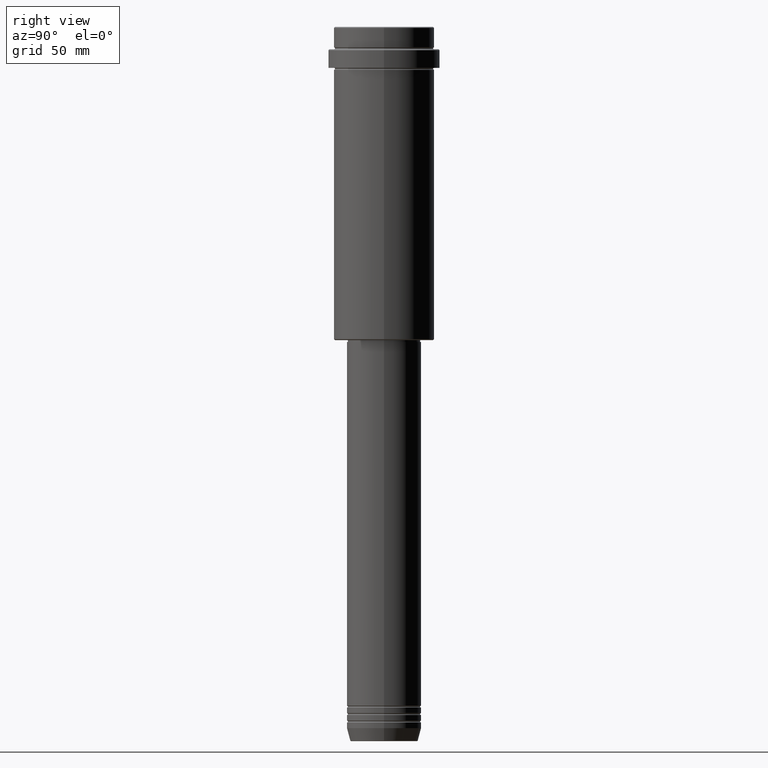
[diagram: clean part render]
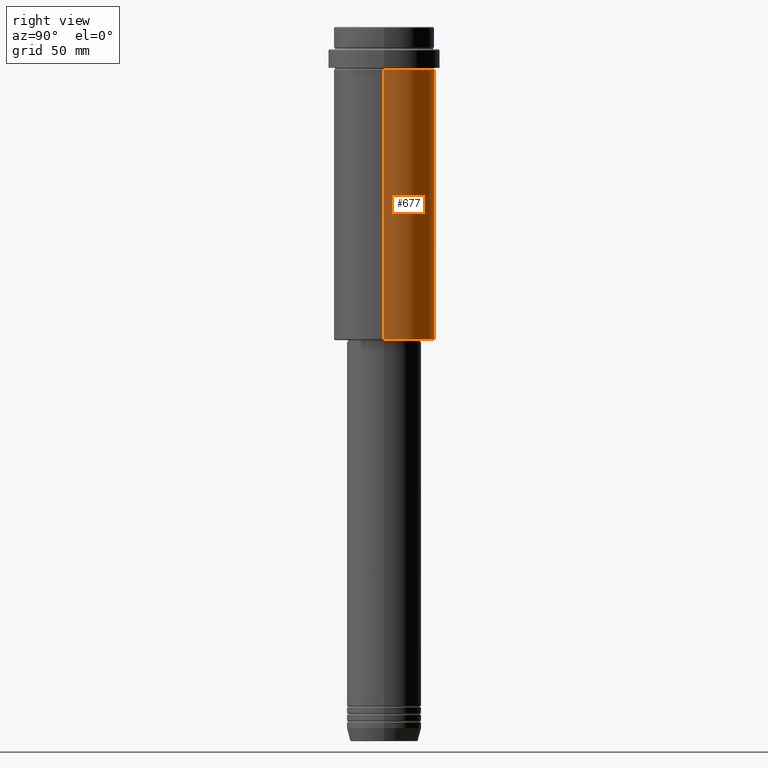
[diagram: same view with one face highlighted and labeled with its STEP entity id]
A machine part, right view. The second image highlights one B-rep face of the part: STEP entity #677.
In plain terms, the highlighted cylindrical surface (partial cylindrical patch) has radius 27 mm, axis along (-0, -0, 1).
Its self-contained STEP definition (entity closure, byte-faithful):
#48 = VERTEX_POINT ( 'NONE', #391 ) ;
#78 = CARTESIAN_POINT ( 'NONE',  ( -26.99999999999999645, 3.306546357697853339E-15, -23.00000000000000000 ) ) ;
#125 = DIRECTION ( 'NONE',  ( -0.000000000000000000, -0.000000000000000000, 1.000000000000000000 ) ) ;
#200 = ORIENTED_EDGE ( 'NONE', *, *, #1027, .F. ) ;
#220 = VERTEX_POINT ( 'NONE', #78 ) ;
#239 = CARTESIAN_POINT ( 'NONE',  ( -26.99999999999999645, 3.306546357697853339E-15, 0.000000000000000000 ) ) ;
#266 = DIRECTION ( 'NONE',  ( -0.000000000000000000, -0.000000000000000000, 1.000000000000000000 ) ) ;
#285 = CARTESIAN_POINT ( 'NONE',  ( 0.000000000000000000, 0.000000000000000000, -167.5000000000000853 ) ) ;
#339 = CARTESIAN_POINT ( 'NONE',  ( -26.99999999999999645, 3.306546357697853339E-15, -167.5000000000000853 ) ) ;
#374 = ORIENTED_EDGE ( 'NONE', *, *, #857, .T. ) ;
#391 = CARTESIAN_POINT ( 'NONE',  ( 26.99999999999999645, 0.000000000000000000, -23.00000000000000000 ) ) ;
#429 = VERTEX_POINT ( 'NONE', #339 ) ;
#460 = CARTESIAN_POINT ( 'NONE',  ( 0.000000000000000000, 0.000000000000000000, 0.000000000000000000 ) ) ;
#474 = LINE ( 'NONE', #901, #961 ) ;
#483 = DIRECTION ( 'NONE',  ( 1.000000000000000000, 0.000000000000000000, 0.000000000000000000 ) ) ;
#543 = ORIENTED_EDGE ( 'NONE', *, *, #1120, .F. ) ;
#596 = CYLINDRICAL_SURFACE ( 'NONE', #870, 26.99999999999999645 ) ;
#671 = AXIS2_PLACEMENT_3D ( 'NONE', #703, #266, #1340 ) ;
#677 = ADVANCED_FACE ( 'NONE', ( #710 ), #596, .T. ) ;
#703 = CARTESIAN_POINT ( 'NONE',  ( 0.000000000000000000, 0.000000000000000000, -23.00000000000000000 ) ) ;
#710 = FACE_OUTER_BOUND ( 'NONE', #1102, .T. ) ;
#754 = ORIENTED_EDGE ( 'NONE', *, *, #1112, .T. ) ;
#757 = AXIS2_PLACEMENT_3D ( 'NONE', #285, #1064, #1381 ) ;
#801 = CIRCLE ( 'NONE', #671, 26.99999999999999645 ) ;
#857 = EDGE_CURVE ( 'NONE', #977, #429, #1099, .T. ) ;
#870 = AXIS2_PLACEMENT_3D ( 'NONE', #460, #892, #483 ) ;
#872 = VECTOR ( 'NONE', #125, 1000.000000000000000 ) ;
#892 = DIRECTION ( 'NONE',  ( -0.000000000000000000, -0.000000000000000000, 1.000000000000000000 ) ) ;
#901 = CARTESIAN_POINT ( 'NONE',  ( 26.99999999999999645, 0.000000000000000000, 0.000000000000000000 ) ) ;
#961 = VECTOR ( 'NONE', #1323, 1000.000000000000000 ) ;
#977 = VERTEX_POINT ( 'NONE', #1214 ) ;
#1027 = EDGE_CURVE ( 'NONE', #48, #220, #801, .T. ) ;
#1064 = DIRECTION ( 'NONE',  ( -0.000000000000000000, -0.000000000000000000, 1.000000000000000000 ) ) ;
#1099 = CIRCLE ( 'NONE', #757, 26.99999999999999645 ) ;
#1102 = EDGE_LOOP ( 'NONE', ( #374, #754, #200, #543 ) ) ;
#1112 = EDGE_CURVE ( 'NONE', #429, #220, #1244, .T. ) ;
#1120 = EDGE_CURVE ( 'NONE', #977, #48, #474, .T. ) ;
#1214 = CARTESIAN_POINT ( 'NONE',  ( 26.99999999999999645, 0.000000000000000000, -167.5000000000000853 ) ) ;
#1244 = LINE ( 'NONE', #239, #872 ) ;
#1323 = DIRECTION ( 'NONE',  ( -0.000000000000000000, -0.000000000000000000, 1.000000000000000000 ) ) ;
#1340 = DIRECTION ( 'NONE',  ( 1.000000000000000000, 0.000000000000000000, 0.000000000000000000 ) ) ;
#1381 = DIRECTION ( 'NONE',  ( -1.000000000000000000, 0.000000000000000000, 0.000000000000000000 ) ) ;